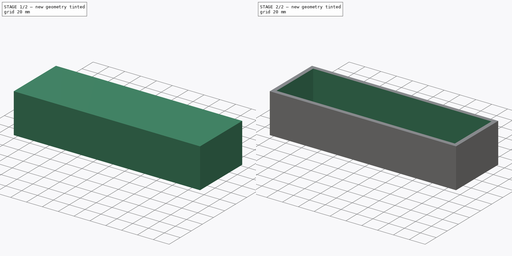
[diagram: build sequence overview — one tinted view per stage of 2, left to right]
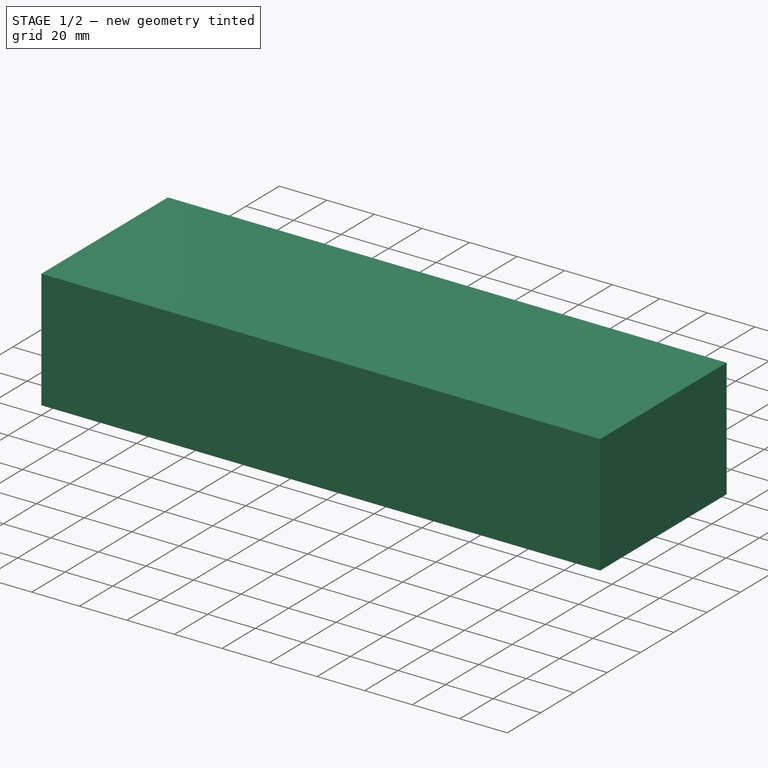
[diagram: stage 1 of 2 — iso view after this stage's code; geometry added in this stage tinted green]
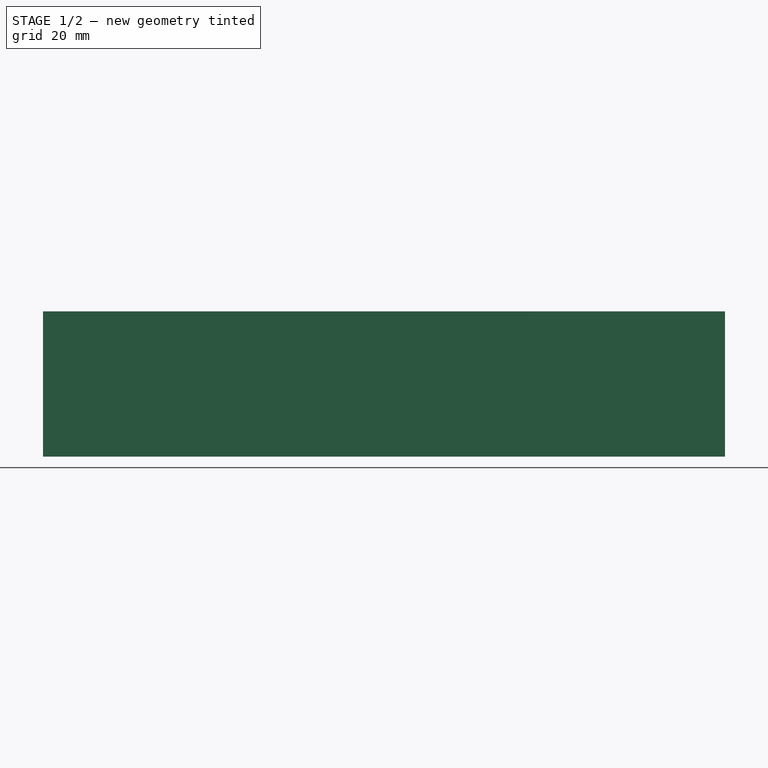
[diagram: stage 1 of 2 — front view after this stage's code; geometry added in this stage tinted green]
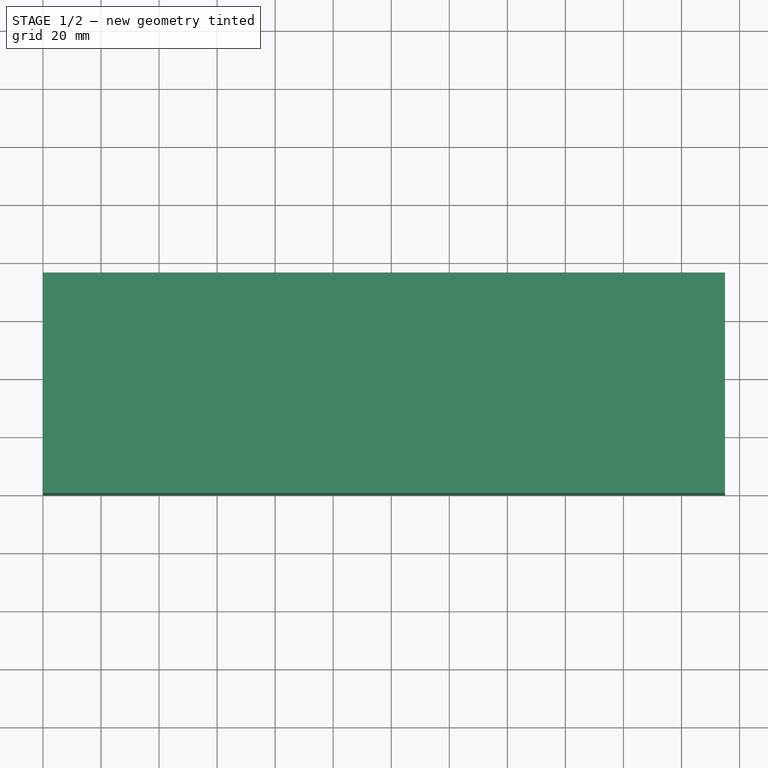
[diagram: stage 1 of 2 — top view after this stage's code; geometry added in this stage tinted green]
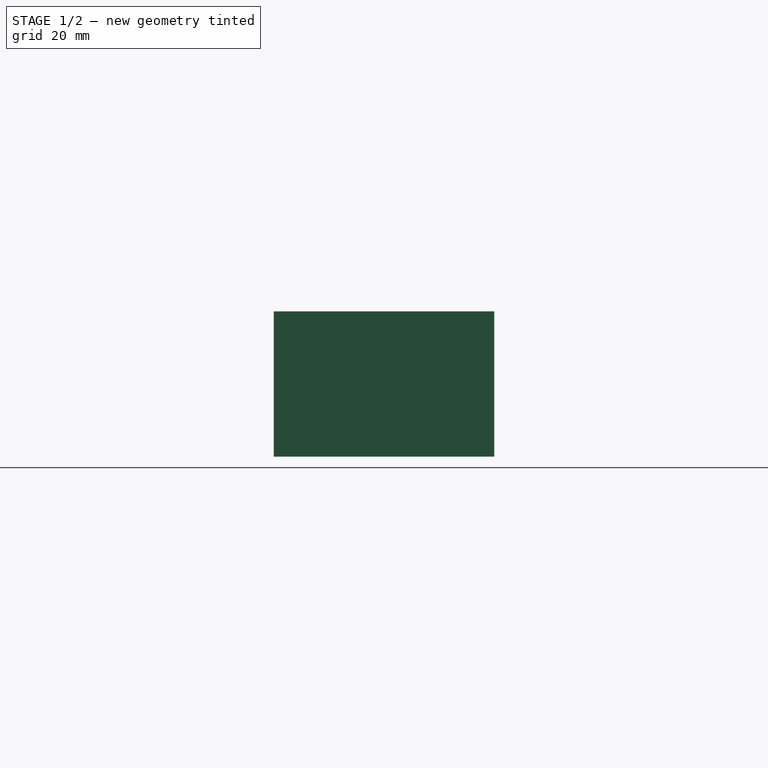
[diagram: stage 1 of 2 — right view after this stage's code; geometry added in this stage tinted green]
FCSTD DOCUMENT  (FreeCAD 0.19R14555 (Git shallow))
Label: CutleryBox
License: All rights reserved
LicenseURL: http://en.wikipedia.org/wiki/All_rights_reserved
objects: PartDesign::AdditiveBox×1, Sketcher::SketchObject×1, PartDesign::Pocket×1, PartDesign::Body×1
note: 6 computed .brp shape members not serialized (recipe doc carries the construction recipe); baked Part::Feature solids carry a one-line shape summary decoded from their .brp

FEATURE [PartDesign::AdditiveBox] Box
  AttacherType = Attacher::AttachEngine3D
  Height = 50
  Length = 235
  Width = 76
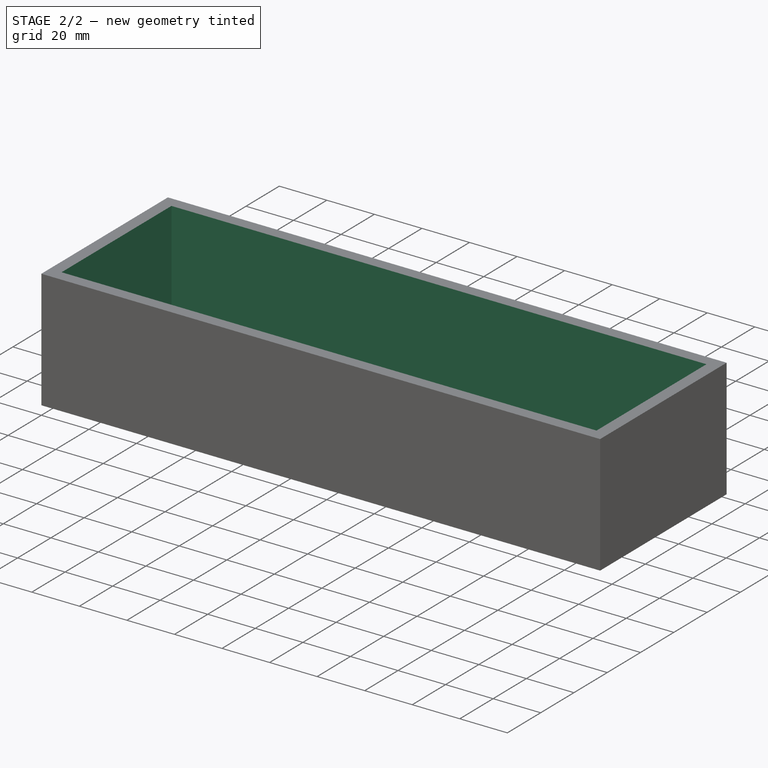
[diagram: stage 2 of 2 — iso view after this stage's code; geometry added in this stage tinted green]
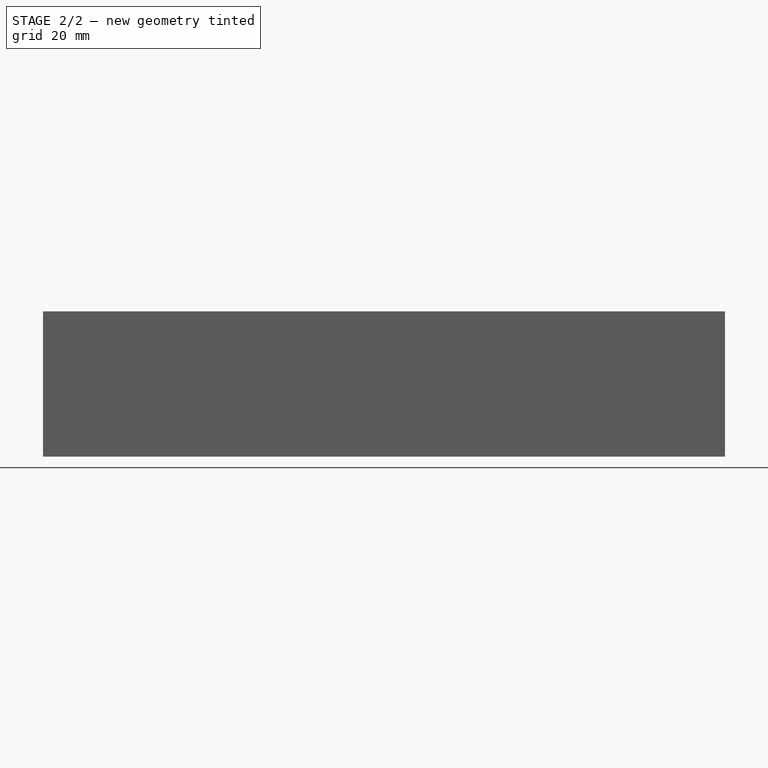
[diagram: stage 2 of 2 — front view after this stage's code; geometry added in this stage tinted green]
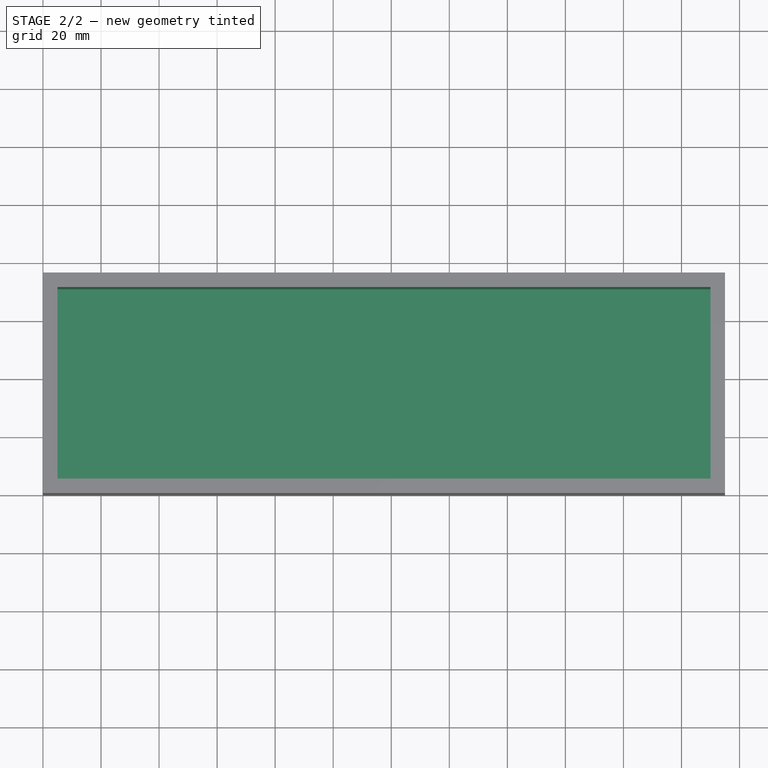
[diagram: stage 2 of 2 — top view after this stage's code; geometry added in this stage tinted green]
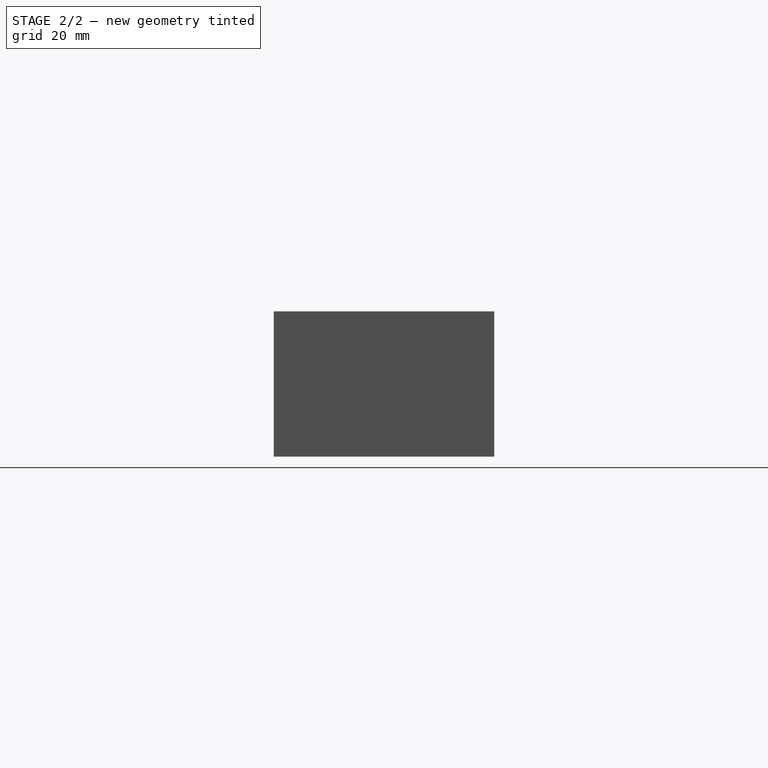
[diagram: stage 2 of 2 — right view after this stage's code; geometry added in this stage tinted green]
FEATURE [Sketcher::SketchObject] Sketch
  FullyConstrained = true
  MapMode = 5
  Placement = pos=(0,0,50) rot=(0,0,1;0rad)
  Support = -> [Box]
  sketch-geometry (4):
    g0: LineSegment StartX=5 StartY=71 StartZ=0 EndX=230 EndY=71 EndZ=0
    g1: LineSegment StartX=230 StartY=71 StartZ=0 EndX=230 EndY=5 EndZ=0
    g2: LineSegment StartX=230 StartY=5 StartZ=0 EndX=5 EndY=5 EndZ=0
    g3: LineSegment StartX=5 StartY=5 StartZ=0 EndX=5 EndY=71 EndZ=0
  constraints (12):
    c: Coincident(g0,g1)
    c: Coincident(g1,g2)
    c: Coincident(g2,g3)
    c: Coincident(g3,g0)
    c: Horizontal(g0)
    c: Horizontal(g2)
    c: Vertical(g1)
    c: Vertical(g3)
    c: DistanceX(g2,g2) = 225
    c: DistanceY(g3,g3) = 66
    c: DistanceY(g-1,g2) = 5
    c: DistanceX(g-1,g2) = 5
FEATURE [PartDesign::Pocket] Pocket
  BaseFeature = -> Box
  Length = 45
  Length2 = 100
  Profile = -> Sketch
  Type = 0
FEATURE [PartDesign::Body] Body
  Group = -> [Box,Sketch,Pocket]
  Origin = -> Origin
  Tip = -> Pocket
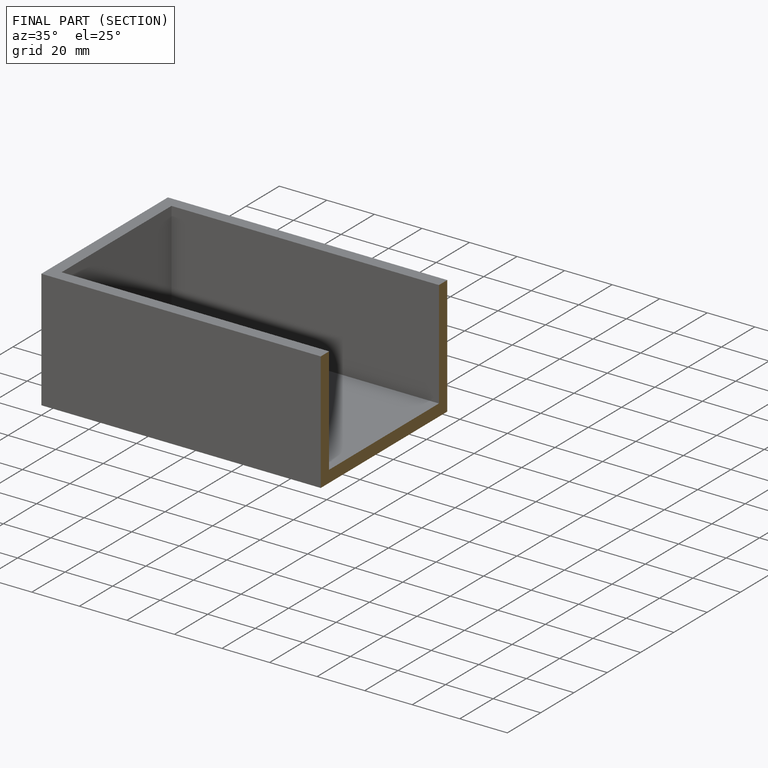
[diagram: finished part — half-section view (interior)]
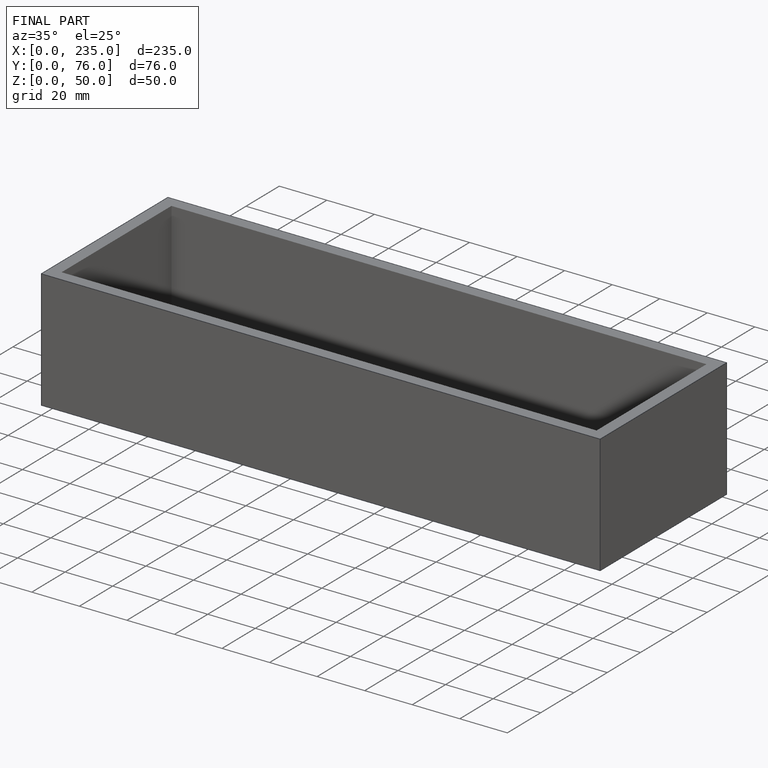
[diagram: finished part — iso view with bounding-box wireframe]
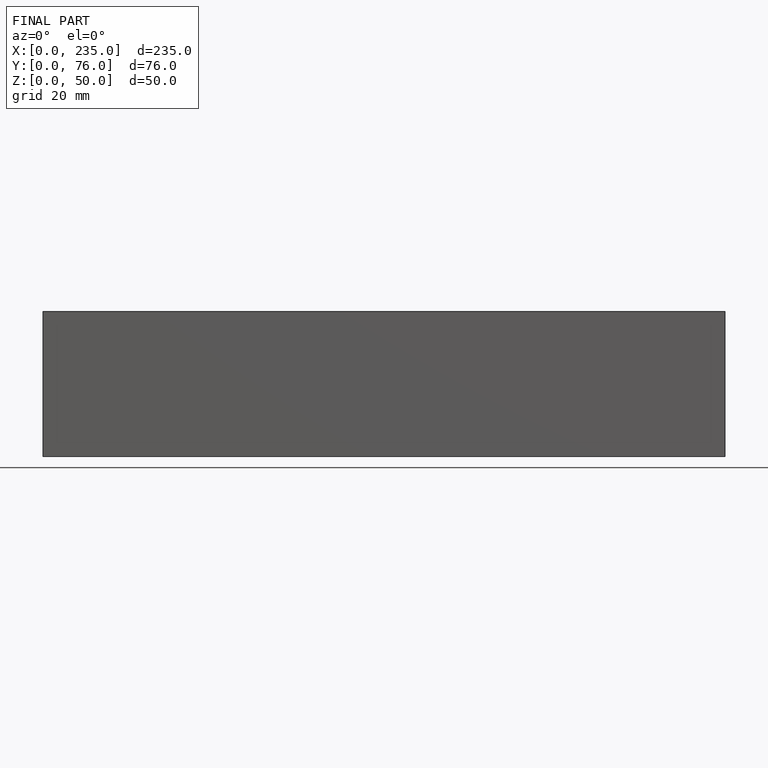
[diagram: finished part — front view with bounding-box wireframe]
